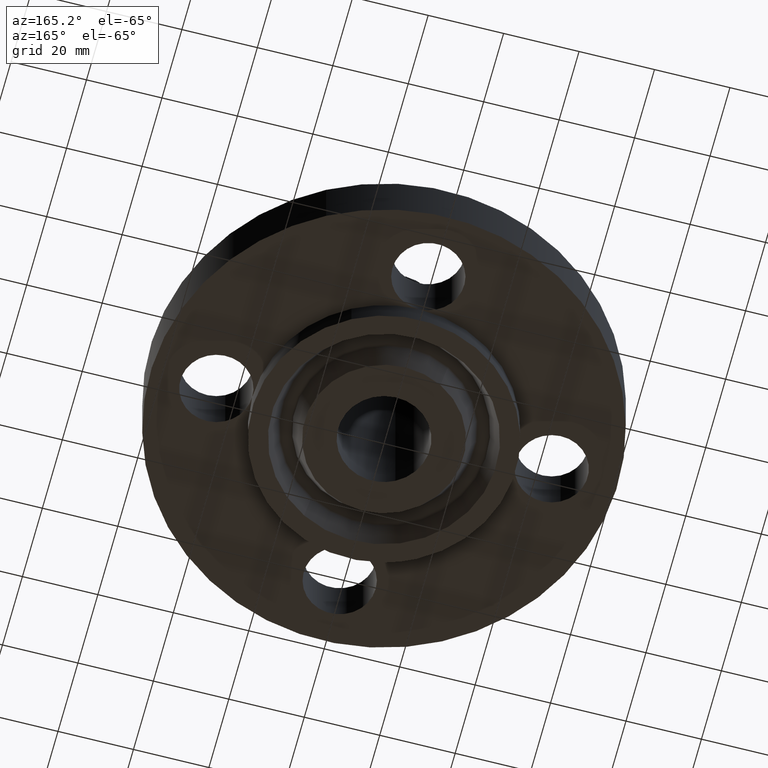
[diagram: clean part render]
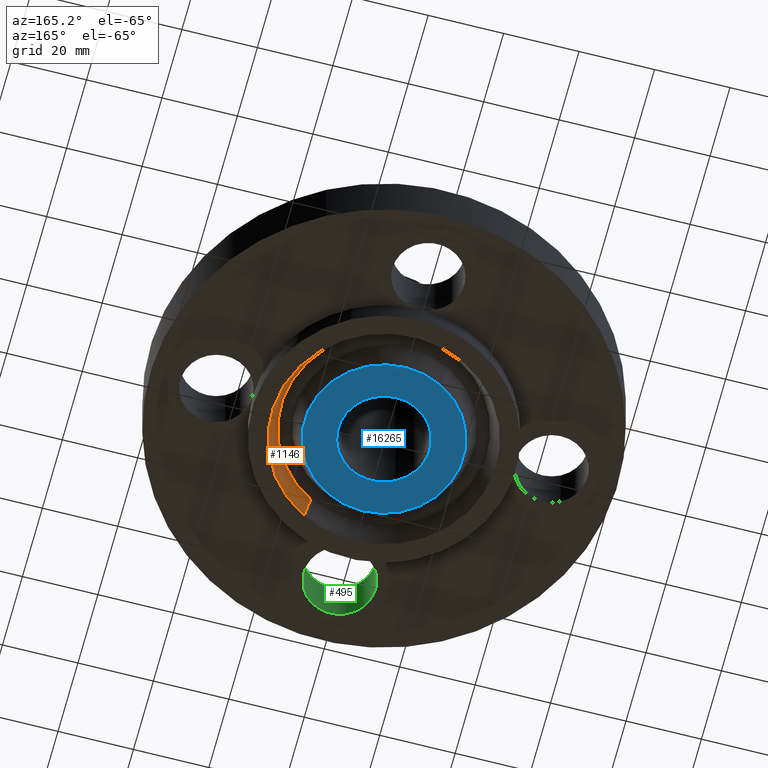
[diagram: same view with three faces highlighted in distinct colors, each labeled with its STEP entity id]
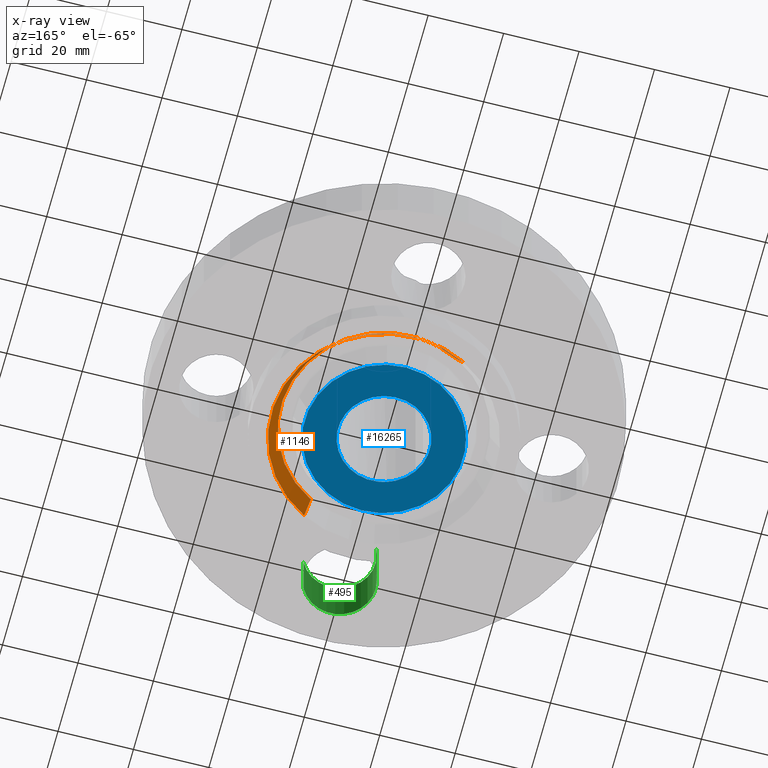
[diagram: x-ray of the same camera — body ghosted, the three highlighted faces saturated]
A machine part, auxiliary view with three faces highlighted in distinct colors.
The next image is the same camera in x-ray (body ghosted, the three faces saturated) — at least one of them is partly hidden behind the body in this view.
Their STEP definitions:

[orange] entity #1146 — the highlighted conical surface has half-angle 23 deg.
#836=AXIS2_PLACEMENT_3D('Circle Axis2P3D',#834,#835,$) ;
#1133=AXIS2_PLACEMENT_3D('Cone Axis2P3D',#1130,#1131,#1132) ;
#1137=AXIS2_PLACEMENT_3D('Circle Axis2P3D',#1135,#1136,$) ;
#829=CARTESIAN_POINT('Vertex',(0.561886731257,-1.02852676252,-0.250000000001)) ;
#831=CARTESIAN_POINT('Vertex',(-0.561886731257,1.0285267625,-0.250000000001)) ;
#834=CARTESIAN_POINT('Axis2P3D Location',(1.28117289306E-011,-1.50207055892E-012,-0.250000000001)) ;
#1097=CARTESIAN_POINT('Line Origine',(-0.538370547572,0.985480677062,-0.134443667512)) ;
#1101=CARTESIAN_POINT('Vertex',(-0.514854363896,0.942434591581,-0.0188873350186)) ;
#1108=CARTESIAN_POINT('Vertex',(0.514854363896,-0.942434591581,-0.0188873350179)) ;
#1111=CARTESIAN_POINT('Line Origine',(0.538370547572,-0.985480677062,-0.134443667512)) ;
#1130=CARTESIAN_POINT('Axis2P3D Location',(0.,0.,-0.0188873350169)) ;
#1135=CARTESIAN_POINT('Axis2P3D Location',(0.,0.,-0.0188873350169)) ;
#835=DIRECTION('Axis2P3D Direction',(0.,0.,-0.0393700787402)) ;
#1098=DIRECTION('Vector Direction',(-0.00737505833566,0.0134999537303,-0.0362403485611)) ;
#1112=DIRECTION('Vector Direction',(0.00737505833566,-0.0134999537303,-0.0362403485611)) ;
#1131=DIRECTION('Axis2P3D Direction',(-0.,-0.,-0.0393700787402)) ;
#1132=DIRECTION('Axis2P3D XDirection',(-0.0188750212049,0.0345504945626,0.)) ;
#1136=DIRECTION('Axis2P3D Direction',(-0.,0.,-0.0393700787402)) ;
#1099=VECTOR('Line Direction',#1098,0.0393700787402) ;
#1113=VECTOR('Line Direction',#1112,0.0393700787402) ;
#1141=ORIENTED_EDGE('',*,*,#838,.T.) ;
#1142=ORIENTED_EDGE('',*,*,#1115,.T.) ;
#1143=ORIENTED_EDGE('',*,*,#1139,.T.) ;
#1144=ORIENTED_EDGE('',*,*,#1103,.F.) ;
#1146=ADVANCED_FACE('PartBody',(#1145),#1134,.F.) ;
#837=CIRCLE('generated circle',#836,1.17199999998) ;
#1138=CIRCLE('generated circle',#1137,1.07389849401) ;
#1134=CONICAL_SURFACE('Cone',#1133,1.07389849401,0.401425727959) ;
#838=EDGE_CURVE('',#832,#830,#837,.T.) ;
#1103=EDGE_CURVE('',#832,#1102,#1100,.F.) ;
#1115=EDGE_CURVE('',#830,#1109,#1114,.F.) ;
#1139=EDGE_CURVE('',#1109,#1102,#1138,.F.) ;
#1140=EDGE_LOOP('',(#1141,#1142,#1143,#1144)) ;
#1145=FACE_OUTER_BOUND('',#1140,.T.) ;
#1100=LINE('Line',#1097,#1099) ;
#1114=LINE('Line',#1111,#1113) ;
#830=VERTEX_POINT('',#829) ;
#832=VERTEX_POINT('',#831) ;
#1102=VERTEX_POINT('',#1101) ;
#1109=VERTEX_POINT('',#1108) ;

[blue] entity #16265 — the highlighted planar face has unit normal (0, 0, -1).
#819=AXIS2_PLACEMENT_3D('Plane Axis2P3D',#816,#817,#818) ;
#15717=AXIS2_PLACEMENT_3D('Circle Axis2P3D',#15715,#15716,$) ;
#16216=AXIS2_PLACEMENT_3D('Circle Axis2P3D',#16214,#16215,$) ;
#16240=AXIS2_PLACEMENT_3D('Circle Axis2P3D',#16238,#16239,$) ;
#816=CARTESIAN_POINT('Axis2P3D Location',(0.,0.478500000002,-0.250000000001)) ;
#15712=CARTESIAN_POINT('Vertex',(-0.229405120223,-0.419923255866,-0.250000000021)) ;
#15715=CARTESIAN_POINT('Axis2P3D Location',(0.,0.,-0.250000000021)) ;
#15719=CARTESIAN_POINT('Vertex',(0.229405120206,0.419923255879,-0.250000000001)) ;
#15747=CARTESIAN_POINT('Control Point',(0.229405120223,0.419923255866,-0.250000000001)) ;
#15748=CARTESIAN_POINT('Control Point',(0.295366511008,0.383888383847,-0.250000000002)) ;
#15749=CARTESIAN_POINT('Control Point',(0.354252471218,0.334902023033,-0.250000000003)) ;
#15750=CARTESIAN_POINT('Control Point',(0.402660838744,0.274806163208,-0.250000000004)) ;
#15751=CARTESIAN_POINT('Control Point',(0.473305668442,0.138871666265,-0.250000000006)) ;
#15752=CARTESIAN_POINT('Control Point',(0.48730581617,-0.0136828331305,-0.250000000008)) ;
#15753=CARTESIAN_POINT('Control Point',(0.479041511111,-0.0904069080775,-0.250000000009)) ;
#15754=CARTESIAN_POINT('Control Point',(0.432874744661,-0.236480550799,-0.250000000011)) ;
#15755=CARTESIAN_POINT('Control Point',(0.334902023033,-0.354252471218,-0.250000000013)) ;
#15756=CARTESIAN_POINT('Control Point',(0.274806163209,-0.402660838744,-0.250000000014)) ;
#15757=CARTESIAN_POINT('Control Point',(0.138871666265,-0.473305668442,-0.250000000016)) ;
#15758=CARTESIAN_POINT('Control Point',(-0.0136828331304,-0.48730581617,-0.250000000018)) ;
#15759=CARTESIAN_POINT('Control Point',(-0.0904069080775,-0.479041511111,-0.250000000019)) ;
#15760=CARTESIAN_POINT('Control Point',(-0.163443729438,-0.455958127886,-0.25000000002)) ;
#15761=CARTESIAN_POINT('Control Point',(-0.229405120223,-0.419923255866,-0.250000000021)) ;
#16204=CARTESIAN_POINT('Vertex',(-0.396964345934,0.726638361253,-0.250000000001)) ;
#16211=CARTESIAN_POINT('Vertex',(0.396964345934,-0.72663836127,-0.250000000001)) ;
#16214=CARTESIAN_POINT('Axis2P3D Location',(0.,0.,-0.250000000001)) ;
#16238=CARTESIAN_POINT('Axis2P3D Location',(0.,0.,-0.250000000001)) ;
#817=DIRECTION('Axis2P3D Direction',(0.,0.,-0.0393700787402)) ;
#818=DIRECTION('Axis2P3D XDirection',(0.0393700787402,0.,0.)) ;
#15716=DIRECTION('Axis2P3D Direction',(-0.,0.,-0.0393700787402)) ;
#16215=DIRECTION('Axis2P3D Direction',(0.,0.,0.0393700787402)) ;
#16239=DIRECTION('Axis2P3D Direction',(0.,0.,0.0393700787402)) ;
#16258=ORIENTED_EDGE('',*,*,#16218,.T.) ;
#16259=ORIENTED_EDGE('',*,*,#16242,.T.) ;
#16262=ORIENTED_EDGE('',*,*,#15762,.F.) ;
#16263=ORIENTED_EDGE('',*,*,#15721,.F.) ;
#16264=FACE_BOUND('',#16261,.T.) ;
#16265=ADVANCED_FACE('PartBody',(#16260,#16264),#820,.T.) ;
#15746=B_SPLINE_CURVE_WITH_KNOTS('',5,(#15747,#15748,#15749,#15750,#15751,#15752,#15753,#15754,#15755,#15756,#15757,#15758,#15759,#15760,#15761),.UNSPECIFIED.,.F.,.U.,(6,3,3,3,6),(-19.0913014763,-9.54565073816,-1.7763568394E-015,9.54565073816,19.0913014763),.UNSPECIFIED.) ;
#15718=CIRCLE('generated circle',#15717,0.478500000002) ;
#16217=CIRCLE('generated circle',#16216,0.828000000004) ;
#16241=CIRCLE('generated circle',#16240,0.828000000004) ;
#15721=EDGE_CURVE('',#15713,#15720,#15718,.T.) ;
#15762=EDGE_CURVE('',#15720,#15713,#15746,.T.) ;
#16218=EDGE_CURVE('',#16205,#16212,#16217,.F.) ;
#16242=EDGE_CURVE('',#16212,#16205,#16241,.F.) ;
#16257=EDGE_LOOP('',(#16258,#16259)) ;
#16261=EDGE_LOOP('',(#16262,#16263)) ;
#16260=FACE_OUTER_BOUND('',#16257,.T.) ;
#820=PLANE('',#819) ;
#15713=VERTEX_POINT('',#15712) ;
#15720=VERTEX_POINT('',#15719) ;
#16205=VERTEX_POINT('',#16204) ;
#16212=VERTEX_POINT('',#16211) ;

[green] entity #495 — the highlighted cylindrical surface (partial cylindrical patch) has radius 9.525 mm, axis along (0, 0, -1).
#166=AXIS2_PLACEMENT_3D('Circle Axis2P3D',#164,#165,$) ;
#355=AXIS2_PLACEMENT_3D('Circle Axis2P3D',#353,#354,$) ;
#487=AXIS2_PLACEMENT_3D('Cylinder Axis2P3D',#484,#485,#486) ;
#159=CARTESIAN_POINT('Vertex',(-0.329093460698,-1.57021542302,0.)) ;
#164=CARTESIAN_POINT('Axis2P3D Location',(1.74838271595E-017,-1.74999999999,0.)) ;
#168=CARTESIAN_POINT('Vertex',(0.329093460698,-1.92978457696,0.)) ;
#348=CARTESIAN_POINT('Vertex',(-0.329093460698,-1.57021542305,0.620000000002)) ;
#350=CARTESIAN_POINT('Vertex',(0.32909346071,-1.92978457699,0.619999999987)) ;
#353=CARTESIAN_POINT('Axis2P3D Location',(1.74838271595E-017,-1.75000000003,0.620000000002)) ;
#459=CARTESIAN_POINT('Line Origine',(-0.32909346071,-1.57021542303,0.309999999994)) ;
#464=CARTESIAN_POINT('Line Origine',(0.32909346071,-1.92978457699,0.309999999994)) ;
#484=CARTESIAN_POINT('Axis2P3D Location',(2.14313189852E-016,-1.75000000001,0.616062992128)) ;
#165=DIRECTION('Axis2P3D Direction',(0.,0.,-0.0393700787402)) ;
#354=DIRECTION('Axis2P3D Direction',(0.,0.,-0.0393700787402)) ;
#460=DIRECTION('Vector Direction',(0.,0.,-0.0393700787402)) ;
#465=DIRECTION('Vector Direction',(0.,0.,-0.0393700787402)) ;
#485=DIRECTION('Axis2P3D Direction',(0.,0.,-0.0393700787402)) ;
#486=DIRECTION('Axis2P3D XDirection',(0.0345504945626,-0.0188750212049,0.)) ;
#461=VECTOR('Line Direction',#460,0.0393700787402) ;
#466=VECTOR('Line Direction',#465,0.0393700787402) ;
#490=ORIENTED_EDGE('',*,*,#468,.F.) ;
#491=ORIENTED_EDGE('',*,*,#170,.T.) ;
#492=ORIENTED_EDGE('',*,*,#463,.T.) ;
#493=ORIENTED_EDGE('',*,*,#357,.F.) ;
#495=ADVANCED_FACE('PartBody',(#494),#488,.F.) ;
#167=CIRCLE('generated circle',#166,0.374999999988) ;
#356=CIRCLE('generated circle',#355,0.374999999988) ;
#488=CYLINDRICAL_SURFACE('generated cylinder',#487,0.375000000001) ;
#170=EDGE_CURVE('',#169,#160,#167,.T.) ;
#357=EDGE_CURVE('',#351,#349,#356,.T.) ;
#463=EDGE_CURVE('',#160,#349,#462,.F.) ;
#468=EDGE_CURVE('',#169,#351,#467,.F.) ;
#489=EDGE_LOOP('',(#490,#491,#492,#493)) ;
#494=FACE_OUTER_BOUND('',#489,.T.) ;
#462=LINE('Line',#459,#461) ;
#467=LINE('Line',#464,#466) ;
#160=VERTEX_POINT('',#159) ;
#169=VERTEX_POINT('',#168) ;
#349=VERTEX_POINT('',#348) ;
#351=VERTEX_POINT('',#350) ;